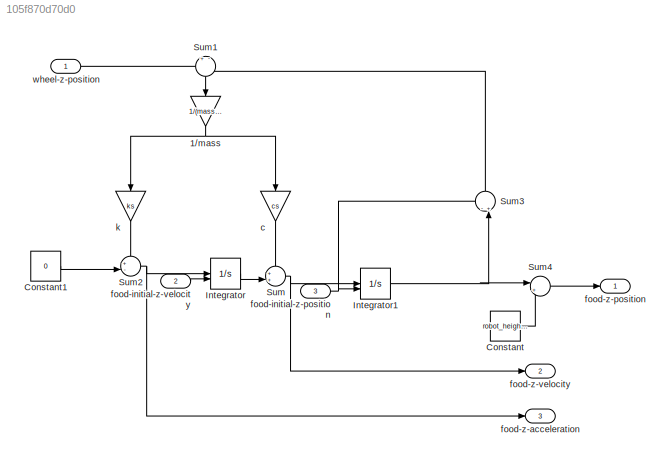
MODEL slx_105f870d70d0
KIND model
CONFIG AbsTol = auto
CONFIG EnableMultiTasking = off
CONFIG FixedStep = auto
CONFIG MaxStep = auto
CONFIG MinStep = auto
CONFIG RelTol = 1e-3
CONFIG SampleTimeConstraint = Unconstrained
CONFIG SolverName = VariableStepAuto
CONFIG StartTime = 0.0
CONFIG StopTime = 10
BLOCK [Gain] 1//mass
  Gain = 1/(mass_payload+mass_robot)
  NameLocation = left
BLOCK [Constant] Constant
  Value = robot_height*0
BLOCK [Constant] Constant1
  Value = 0
BLOCK [Integrator] Integrator
  InitialConditionSource = external
BLOCK [Integrator] Integrator1
  InitialConditionSource = external
BLOCK [Sum] Sum
  Inputs = ++|
BLOCK [Sum] Sum1
  Inputs = +-
  NameLocation = left
BLOCK [Sum] Sum2
  Inputs = +-|
BLOCK [Sum] Sum3
  Inputs = -+|
  NameLocation = right
BLOCK [Sum] Sum4
  Inputs = |++
BLOCK [Gain] c
  Gain = cs
  NameLocation = left
BLOCK [Inport] food-initial-z-position
  Port = 3
BLOCK [Inport] food-initial-z-velocity
  Port = 2
BLOCK [Outport] food-z-acceleration
  Port = 3
BLOCK [Outport] food-z-position
BLOCK [Outport] food-z-velocity
  Port = 2
BLOCK [Gain] k
  Gain = ks
  NameLocation = left
BLOCK [Inport] wheel-z-position
NET 1//mass:1 -> c:1, k:1
LINE Constant1:1 -> Sum2:2
LINE Constant:1 -> Sum4:2
NET Integrator1:1 -> Sum3:2, Sum4:1
LINE Integrator:1 -> Sum:2
LINE Sum1:1 -> 1//mass:1
NET Sum2:1 -> Integrator:1, food-z-acceleration:1
LINE Sum3:1 -> Sum1:2
LINE Sum4:1 -> food-z-position:1
NET Sum:1 -> Integrator1:1, food-z-velocity:1
LINE c:1 -> Sum:1
NET food-initial-z-position:1 -> Integrator1:2, Sum3:1
LINE food-initial-z-velocity:1 -> Integrator:2
LINE k:1 -> Sum2:1
LINE wheel-z-position:1 -> Sum1:1
note: NET lines group one-source signal fan-out (src -> all destinations, sorted); 1:1 wires keep LINE
